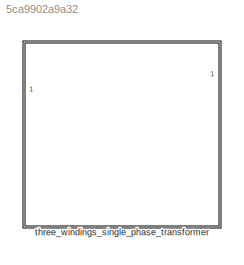
MODEL slx_5ca9902a9a32
KIND library
CONFIG SolverName = VariableStepAuto
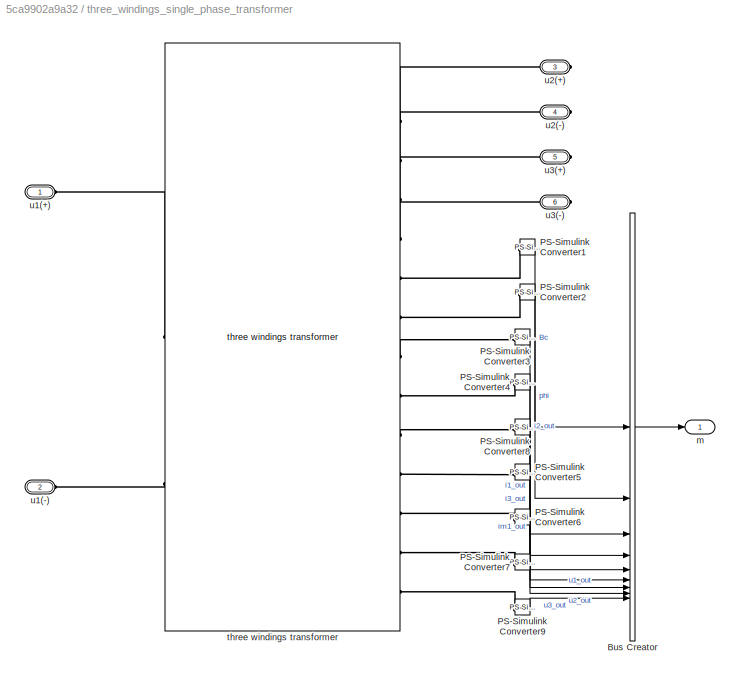
BLOCK [SubSystem] three_windings_single_phase_transformer
  PortSchema = {"entries":[{"content":{"sides":[{"content":{"connectorIds":["LConn1","LConn2"]},"type":"ConnectorPlacement.EquallySpacedRectSide","uuid":"cc5083b3-98b5-4a35-b4ef-aa8e070b6479"},{"content":{"connectorIds":["RConn1","RConn2","RConn3","RConn4"],"side":"RIGHT"},"type":"ConnectorPlacement.EquallySpacedRectSide","uuid":"4f99e7ca-a3d1-47dd-a6e0-5288e9bf64fa"},{"content":{"connectorIds":["Out1"],"side":"...<+287ch>
BLOCK [BusCreator] three_windings_single_phase_transformer/Bus Creator
  DisplayOption = bar
  InheritFromInputs = on
  Inputs = 9
BLOCK [Reference] three_windings_single_phase_transformer/PS-Simulink Converter1  REF=nesl_utility/PS-Simulink
Converter
  SourceBlock = nesl_utility/PS-Simulink\nConverter
  SourceType = PS-Simulink\nConverter
BLOCK [Reference] three_windings_single_phase_transformer/PS-Simulink Converter2  REF=nesl_utility/PS-Simulink
Converter
  SourceBlock = nesl_utility/PS-Simulink\nConverter
  SourceType = PS-Simulink\nConverter
BLOCK [Reference] three_windings_single_phase_transformer/PS-Simulink Converter3  REF=nesl_utility/PS-Simulink
Converter
  SourceBlock = nesl_utility/PS-Simulink\nConverter
  SourceType = PS-Simulink\nConverter
BLOCK [Reference] three_windings_single_phase_transformer/PS-Simulink Converter4  REF=nesl_utility/PS-Simulink
Converter
  SourceBlock = nesl_utility/PS-Simulink\nConverter
  SourceType = PS-Simulink\nConverter
BLOCK [Reference] three_windings_single_phase_transformer/PS-Simulink Converter5  REF=nesl_utility/PS-Simulink
Converter
  SourceBlock = nesl_utility/PS-Simulink\nConverter
  SourceType = PS-Simulink\nConverter
BLOCK [Reference] three_windings_single_phase_transformer/PS-Simulink Converter6  REF=nesl_utility/PS-Simulink
Converter
  SourceBlock = nesl_utility/PS-Simulink\nConverter
  SourceType = PS-Simulink\nConverter
BLOCK [Reference] three_windings_single_phase_transformer/PS-Simulink Converter7  REF=nesl_utility/PS-Simulink
Converter
  SourceBlock = nesl_utility/PS-Simulink\nConverter
  SourceType = PS-Simulink\nConverter
BLOCK [Reference] three_windings_single_phase_transformer/PS-Simulink Converter8  REF=nesl_utility/PS-Simulink
Converter
  SourceBlock = nesl_utility/PS-Simulink\nConverter
  SourceType = PS-Simulink\nConverter
BLOCK [Reference] three_windings_single_phase_transformer/PS-Simulink Converter9  REF=nesl_utility/PS-Simulink
Converter
  SourceBlock = nesl_utility/PS-Simulink\nConverter
  SourceType = PS-Simulink\nConverter
BLOCK [Outport] three_windings_single_phase_transformer/m
BLOCK [Reference] three_windings_single_phase_transformer/three windings transformer  REF=three_windings_transformer_lib/three windings
transformer
  SourceBlock = three_windings_transformer_lib/three windings\ntransformer
  SourceType = three windings\ntransformer
BLOCK [PMIOPort] three_windings_single_phase_transformer/u1(+)
  Side = Left
BLOCK [PMIOPort] three_windings_single_phase_transformer/u1(-)
  Port = 2
  Side = Left
BLOCK [PMIOPort] three_windings_single_phase_transformer/u2(+)
  Port = 3
  Side = Right
BLOCK [PMIOPort] three_windings_single_phase_transformer/u2(-)
  Port = 4
  Side = Right
BLOCK [PMIOPort] three_windings_single_phase_transformer/u3(+)
  Port = 5
  Side = Right
BLOCK [PMIOPort] three_windings_single_phase_transformer/u3(-)
  Port = 6
  Side = Right
LINE three_windings_single_phase_transformer/Bus Creator:1 -> three_windings_single_phase_transformer/m:1
LINE three_windings_single_phase_transformer/PS-Simulink Converter1:1 -> three_windings_single_phase_transformer/Bus Creator:1
LINE three_windings_single_phase_transformer/PS-Simulink Converter2:1 -> three_windings_single_phase_transformer/Bus Creator:2
LINE three_windings_single_phase_transformer/PS-Simulink Converter3:1 -> three_windings_single_phase_transformer/Bus Creator:3
LINE three_windings_single_phase_transformer/PS-Simulink Converter4:1 -> three_windings_single_phase_transformer/Bus Creator:4
LINE three_windings_single_phase_transformer/PS-Simulink Converter5:1 -> three_windings_single_phase_transformer/Bus Creator:6
LINE three_windings_single_phase_transformer/PS-Simulink Converter6:1 -> three_windings_single_phase_transformer/Bus Creator:7
LINE three_windings_single_phase_transformer/PS-Simulink Converter7:1 -> three_windings_single_phase_transformer/Bus Creator:8
LINE three_windings_single_phase_transformer/PS-Simulink Converter8:1 -> three_windings_single_phase_transformer/Bus Creator:5
LINE three_windings_single_phase_transformer/PS-Simulink Converter9:1 -> three_windings_single_phase_transformer/Bus Creator:9
PLINE three_windings_single_phase_transformer/PS-Simulink Converter1:LConn1 -- three_windings_single_phase_transformer/three windings transformer:RConn5
PLINE three_windings_single_phase_transformer/PS-Simulink Converter2:LConn1 -- three_windings_single_phase_transformer/three windings transformer:RConn6
PLINE three_windings_single_phase_transformer/PS-Simulink Converter3:LConn1 -- three_windings_single_phase_transformer/three windings transformer:RConn7
PLINE three_windings_single_phase_transformer/PS-Simulink Converter4:LConn1 -- three_windings_single_phase_transformer/three windings transformer:RConn8
PLINE three_windings_single_phase_transformer/PS-Simulink Converter5:LConn1 -- three_windings_single_phase_transformer/three windings transformer:RConn10
PLINE three_windings_single_phase_transformer/PS-Simulink Converter6:LConn1 -- three_windings_single_phase_transformer/three windings transformer:RConn11
PLINE three_windings_single_phase_transformer/PS-Simulink Converter7:LConn1 -- three_windings_single_phase_transformer/three windings transformer:RConn12
PLINE three_windings_single_phase_transformer/PS-Simulink Converter8:LConn1 -- three_windings_single_phase_transformer/three windings transformer:RConn9
PLINE three_windings_single_phase_transformer/PS-Simulink Converter9:LConn1 -- three_windings_single_phase_transformer/three windings transformer:RConn13
PLINE three_windings_single_phase_transformer/three windings transformer:LConn1 -- three_windings_single_phase_transformer/u1(+):RConn1
PLINE three_windings_single_phase_transformer/three windings transformer:LConn2 -- three_windings_single_phase_transformer/u1(-):RConn1
PLINE three_windings_single_phase_transformer/three windings transformer:RConn1 -- three_windings_single_phase_transformer/u2(+):RConn1
PLINE three_windings_single_phase_transformer/three windings transformer:RConn2 -- three_windings_single_phase_transformer/u2(-):RConn1
PLINE three_windings_single_phase_transformer/three windings transformer:RConn3 -- three_windings_single_phase_transformer/u3(+):RConn1
PLINE three_windings_single_phase_transformer/three windings transformer:RConn4 -- three_windings_single_phase_transformer/u3(-):RConn1
